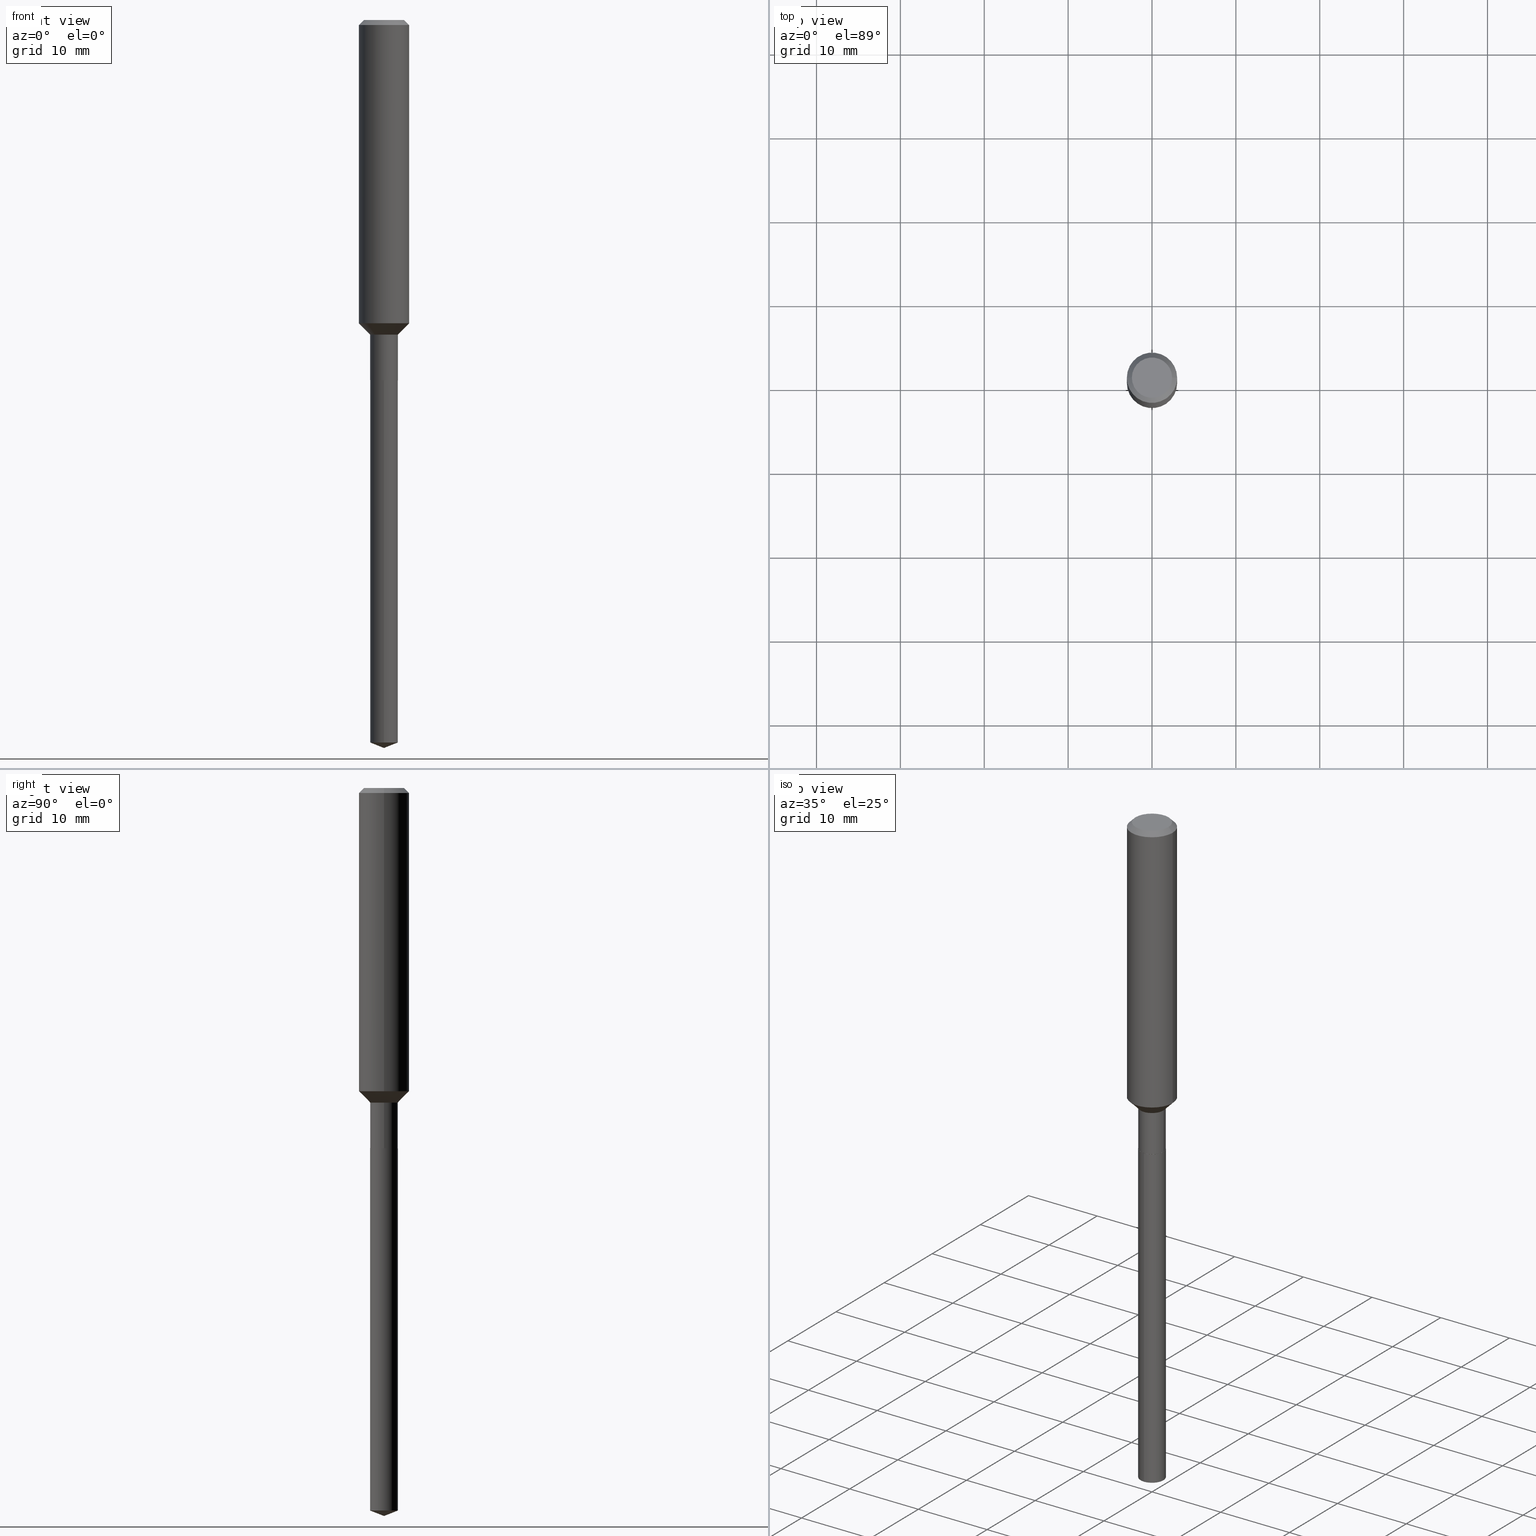
[diagram: canonical four-view strip — front | top / right | iso, engineering-drawing reading convention]
A machine part, canonical four-view strip (front | top / right | iso — engineering-drawing reading convention). The complete STEP part file that produces these views, byte-faithful:
ISO-10303-21;
HEADER;
FILE_DESCRIPTION (( 'STEP AP203' ),
    '1' );
FILE_NAME ('66712.STEP',
    '2024-04-25T04:16:49',
    ( '' ),
    ( '' ),
    'SwSTEP 2.0',
    'SolidWorks 2023',
    '' );
FILE_SCHEMA (( 'CONFIG_CONTROL_DESIGN' ));
ENDSEC;

DATA;
#1 = ORIENTED_EDGE ( 'NONE', *, *, #219, .T. ) ;
#2 = PERSON_AND_ORGANIZATION_ROLE ( 'creator' ) ;
#3 = CARTESIAN_POINT ( 'NONE',  ( 0.1181000000000000799, -8.246878922347486570E-16, 5.758764772215004644E-30 ) ) ;
#4 = AXIS2_PLACEMENT_3D ( 'NONE', #416, #75, #226 ) ;
#5 = AXIS2_PLACEMENT_3D ( 'NONE', #22, #175, #176 ) ;
#6 = PLANE ( 'NONE',  #37 ) ;
#7 = APPLICATION_PROTOCOL_DEFINITION ( 'international standard', 'config_control_design', 1994, #458 ) ;
#8 = LINE ( 'NONE', #348, #124 ) ;
#9 = EDGE_CURVE ( 'NONE', #395, #484, #463, .T. ) ;
#10 = APPROVAL_DATE_TIME ( #350, #193 ) ;
#11 = DIRECTION ( 'NONE',  ( -1.000000000000000000, 6.982962677686265922E-15, -4.876176775795935793E-29 ) ) ;
#12 = SHAPE_DEFINITION_REPRESENTATION ( #397, #38 ) ;
#13 = AXIS2_PLACEMENT_3D ( 'NONE', #323, #177, #292 ) ;
#14 = DIRECTION ( 'NONE',  ( -2.445468806185136597E-29, 3.491481338843145583E-15, 1.000000000000000000 ) ) ;
#15 = DIRECTION ( 'NONE',  ( 0.7071067811866199593, -2.468850131083015945E-15, 0.7071067811864750752 ) ) ;
#16 = ORIENTED_EDGE ( 'NONE', *, *, #368, .F. ) ;
#17 = DIRECTION ( 'NONE',  ( -2.445468806185136597E-29, 3.491481338843145583E-15, 1.000000000000000000 ) ) ;
#18 = ORIENTED_EDGE ( 'NONE', *, *, #255, .T. ) ;
#19 = DATE_AND_TIME ( #90, #276 ) ;
#20 = APPROVAL_PERSON_ORGANIZATION ( #354, #315, #280 ) ;
#21 = CARTESIAN_POINT ( 'NONE',  ( 4.134309563736591358E-29, -5.902698351448221370E-15, -1.690599999999999659 ) ) ;
#22 = CARTESIAN_POINT ( 'NONE',  ( 3.610734692332353876E-29, -5.155172196801902776E-15, -1.476499999999999702 ) ) ;
#23 = ORIENTED_EDGE ( 'NONE', *, *, #212, .F. ) ;
#24 = ADVANCED_FACE ( 'NONE', ( #183 ), #430, .T. ) ;
#25 = DIRECTION ( 'NONE',  ( -2.440828478145644686E-29, 3.498126552706767678E-15, 1.000000000000000000 ) ) ;
#26 = CC_DESIGN_PERSON_AND_ORGANIZATION_ASSIGNMENT ( #389, #473, ( #409 ) ) ;
#27 =( CONVERSION_BASED_UNIT ( 'INCH', #105 ) LENGTH_UNIT ( ) NAMED_UNIT ( #209 ) );
#28 = ORIENTED_EDGE ( 'NONE', *, *, #59, .F. ) ;
#29 = EDGE_CURVE ( 'NONE', #446, #317, #469, .T. ) ;
#30 =( NAMED_UNIT ( * ) PLANE_ANGLE_UNIT ( ) SI_UNIT ( $, .RADIAN. ) );
#31 = EDGE_LOOP ( 'NONE', ( #414, #411, #154, #94 ) ) ;
#32 = DIRECTION ( 'NONE',  ( -2.445468806185136597E-29, 3.491481338843145583E-15, 1.000000000000000000 ) ) ;
#33 = VERTEX_POINT ( 'NONE', #68 ) ;
#34 = VECTOR ( 'NONE', #392, 39.37007874015748143 ) ;
#35 = VERTEX_POINT ( 'NONE', #342 ) ;
#36 = EDGE_CURVE ( 'NONE', #334, #56, #179, .T. ) ;
#37 = AXIS2_PLACEMENT_3D ( 'NONE', #231, #77, #11 ) ;
#38 = ADVANCED_BREP_SHAPE_REPRESENTATION ( '66712', ( #118, #112, #67 ), #123 ) ;
#39 = DIRECTION ( 'NONE',  ( 0.000000000000000000, 0.000000000000000000, 1.000000000000000000 ) ) ;
#40 = ORIENTED_EDGE ( 'NONE', *, *, #51, .T. ) ;
#41 = PERSON_AND_ORGANIZATION ( #447, #479 ) ;
#42 = DIRECTION ( 'NONE',  ( 1.000000000000000000, -6.982962677686266711E-15, 4.876176775795935232E-29 ) ) ;
#43 = CALENDAR_DATE ( 2024, 25, 4 ) ;
#44 = DIRECTION ( 'NONE',  ( -2.445468806185136597E-29, 3.491481338843145583E-15, 1.000000000000000000 ) ) ;
#45 = VECTOR ( 'NONE', #271, 39.37007874015748143 ) ;
#46 = LINE ( 'NONE', #465, #359 ) ;
#47 = COORDINATED_UNIVERSAL_TIME_OFFSET ( 5, 0, .BEHIND. ) ;
#48 = DIRECTION ( 'NONE',  ( 0.7071067811865459074, -7.319954787623251312E-15, -0.7071067811865492381 ) ) ;
#49 = DATE_AND_TIME ( #476, #343 ) ;
#50 = CARTESIAN_POINT ( 'NONE',  ( -0.1180999999999999966, -1.686883405500253272E-15, -0.02362000000000014435 ) ) ;
#51 = EDGE_CURVE ( 'NONE', #73, #320, #351, .T. ) ;
#52 = DIRECTION ( 'NONE',  ( -2.445468806185136597E-29, 3.491481338843145583E-15, 1.000000000000000000 ) ) ;
#53 = PERSON_AND_ORGANIZATION ( #447, #479 ) ;
#54 = DIRECTION ( 'NONE',  ( -6.982962677686266711E-15, -1.000000000000000000, 4.206078512185163024E-15 ) ) ;
#55 = CYLINDRICAL_SURFACE ( 'NONE', #452, 0.06494999999999999385 ) ;
#56 = VERTEX_POINT ( 'NONE', #269 ) ;
#57 = AXIS2_PLACEMENT_3D ( 'NONE', #222, #109, #410 ) ;
#58 = CARTESIAN_POINT ( 'NONE',  ( 4.134309563736591358E-29, -5.902698351448221370E-15, -1.690599999999999659 ) ) ;
#59 = EDGE_CURVE ( 'NONE', #99, #178, #279, .T. ) ;
#60 = ORIENTED_EDGE ( 'NONE', *, *, #204, .T. ) ;
#61 = DIRECTION ( 'NONE',  ( -6.982962677686265133E-15, -1.000000000000000000, 0.000000000000000000 ) ) ;
#62 = ORIENTED_EDGE ( 'NONE', *, *, #184, .T. ) ;
#63 = DIRECTION ( 'NONE',  ( 1.000000000000000000, -6.982962677686271444E-15, 0.000000000000000000 ) ) ;
#64 = DIRECTION ( 'NONE',  ( 1.000000000000000000, -6.982962677686268288E-15, 0.000000000000000000 ) ) ;
#65 = EDGE_CURVE ( 'NONE', #317, #320, #229, .T. ) ;
#66 = CARTESIAN_POINT ( 'NONE',  ( 4.133086829333499117E-29, -5.900952610778799866E-15, -1.690099999999999714 ) ) ;
#67 = AXIS2_PLACEMENT_3D ( 'NONE', #159, #39, #194 ) ;
#68 = CARTESIAN_POINT ( 'NONE',  ( -4.535434259156402642E-16, -0.06495000000001187324, -3.391415514608810078 ) ) ;
#69 = CIRCLE ( 'NONE', #377, 0.06444999999999999341 ) ;
#70 = DIRECTION ( 'NONE',  ( -6.982962677686266711E-15, -1.000000000000000000, 4.206078512185163024E-15 ) ) ;
#71 = ORIENTED_EDGE ( 'NONE', *, *, #117, .T. ) ;
#72 = DIRECTION ( 'NONE',  ( -2.440828478145644686E-29, 3.498126552706767678E-15, 1.000000000000000000 ) ) ;
#73 = VERTEX_POINT ( 'NONE', #311 ) ;
#74 = DIRECTION ( 'NONE',  ( -2.445468806185136597E-29, 3.491481338843145583E-15, 1.000000000000000000 ) ) ;
#75 = DIRECTION ( 'NONE',  ( 2.445468806185136597E-29, -3.491481338843145583E-15, -1.000000000000000000 ) ) ;
#76 = EDGE_CURVE ( 'NONE', #33, #153, #8, .T. ) ;
#77 = DIRECTION ( 'NONE',  ( 2.438088387897960049E-29, -3.491481338843145188E-15, -1.000000000000000000 ) ) ;
#78 = PERSON_AND_ORGANIZATION_ROLE ( 'design_owner' ) ;
#79 = CARTESIAN_POINT ( 'NONE',  ( -0.06494999999999997997, 4.614975068761849284E-16, -3.194848341120560204E-30 ) ) ;
#80 = CC_DESIGN_PERSON_AND_ORGANIZATION_ASSIGNMENT ( #155, #78, ( #322 ) ) ;
#81 = DIRECTION ( 'NONE',  ( 1.000000000000000000, -6.982962677686259611E-15, 0.000000000000000000 ) ) ;
#82 = CIRCLE ( 'NONE', #216, 0.1180999999999999966 ) ;
#83 = DIRECTION ( 'NONE',  ( -2.445468806185136597E-29, 3.491481338843145583E-15, 1.000000000000000000 ) ) ;
#84 = CARTESIAN_POINT ( 'NONE',  ( -0.1180999999999999966, 7.422191030112725094E-16, -0.02362000000000014435 ) ) ;
#85 = FACE_OUTER_BOUND ( 'NONE', #31, .T. ) ;
#86 = CC_DESIGN_DATE_AND_TIME_ASSIGNMENT ( #19, #437, ( #409 ) ) ;
#87 = CLOSED_SHELL ( 'NONE', ( #273, #396, #412, #307, #237 ) ) ;
#88 = CYLINDRICAL_SURFACE ( 'NONE', #471, 0.06494999999999999385 ) ;
#89 = VERTEX_POINT ( 'NONE', #195 ) ;
#90 = CALENDAR_DATE ( 2024, 25, 4 ) ;
#91 = DIRECTION ( 'NONE',  ( 1.000000000000000000, -6.982962677686266711E-15, 0.000000000000000000 ) ) ;
#92 = EDGE_CURVE ( 'NONE', #484, #89, #305, .T. ) ;
#93 = DIRECTION ( 'NONE',  ( -1.000000000000000000, 6.982962677686266711E-15, 0.000000000000000000 ) ) ;
#94 = ORIENTED_EDGE ( 'NONE', *, *, #156, .F. ) ;
#95 = AXIS2_PLACEMENT_3D ( 'NONE', #211, #358, #93 ) ;
#96 = PERSON_AND_ORGANIZATION_ROLE ( 'creator' ) ;
#97 = LINE ( 'NONE', #284, #312 ) ;
#98 = CONICAL_SURFACE ( 'NONE', #95, 0.1180999999999999966, 0.7853981633974459475 ) ;
#99 = VERTEX_POINT ( 'NONE', #272 ) ;
#100 = LINE ( 'NONE', #299, #304 ) ;
#101 = EDGE_LOOP ( 'NONE', ( #260, #60, #285, #289 ) ) ;
#102 = ADVANCED_FACE ( 'NONE', ( #421 ), #198, .T. ) ;
#103 = FACE_OUTER_BOUND ( 'NONE', #107, .T. ) ;
#104 = VERTEX_POINT ( 'NONE', #116 ) ;
#105 = LENGTH_MEASURE_WITH_UNIT ( LENGTH_MEASURE( 0.02539999999999999897 ), #371 );
#106 = AXIS2_PLACEMENT_3D ( 'NONE', #192, #14, #390 ) ;
#107 = EDGE_LOOP ( 'NONE', ( #335, #203, #110, #173 ) ) ;
#108 = AXIS2_PLACEMENT_3D ( 'NONE', #254, #241, #247 ) ;
#109 = DIRECTION ( 'NONE',  ( -2.445468806185136597E-29, 3.491481338843145583E-15, 1.000000000000000000 ) ) ;
#110 = ORIENTED_EDGE ( 'NONE', *, *, #243, .F. ) ;
#111 = CARTESIAN_POINT ( 'NONE',  ( 4.716267017698007905E-46, -6.733579360998555036E-32, -1.928573779297252010E-17 ) ) ;
#112 = MANIFOLD_SOLID_BREP ( 'Body-Move/Copy2[2]', #378 ) ;
#113 = ORIENTED_EDGE ( 'NONE', *, *, #490, .T. ) ;
#114 = APPROVAL_STATUS ( 'not_yet_approved' ) ;
#115 = LINE ( 'NONE', #277, #125 ) ;
#116 = CARTESIAN_POINT ( 'NONE',  ( 4.614975068762680546E-16, 0.06494999999998818385, -3.391415514608810078 ) ) ;
#117 = EDGE_CURVE ( 'NONE', #395, #372, #197, .T. ) ;
#118 = MANIFOLD_SOLID_BREP ( 'Body-Move/Copy2[1]', #87 ) ;
#119 = CARTESIAN_POINT ( 'NONE',  ( 4.134309563736591358E-29, -5.902698351448221370E-15, -1.690599999999999659 ) ) ;
#120 = CC_DESIGN_PERSON_AND_ORGANIZATION_ASSIGNMENT ( #456, #2, ( #137 ) ) ;
#121 = DIRECTION ( 'NONE',  ( 6.611014441532090255E-15, 0.9304175679820302358, 0.3665012267242826471 ) ) ;
#122 = CIRCLE ( 'NONE', #151, 0.06494999999999999385 ) ;
#123 =( GEOMETRIC_REPRESENTATION_CONTEXT ( 3 ) GLOBAL_UNCERTAINTY_ASSIGNED_CONTEXT ( ( #248 ) ) GLOBAL_UNIT_ASSIGNED_CONTEXT ( ( #27, #30, #485 ) ) REPRESENTATION_CONTEXT ( 'NONE', 'WORKASPACE' ) );
#124 = VECTOR ( 'NONE', #309, 39.37007874015748143 ) ;
#125 = VECTOR ( 'NONE', #128, 39.37007874015748143 ) ;
#126 = ADVANCED_FACE ( 'NONE', ( #347 ), #6, .F. ) ;
#127 = CALENDAR_DATE ( 2024, 25, 4 ) ;
#128 = DIRECTION ( 'NONE',  ( -2.440828478145644686E-29, 3.498126552706767678E-15, 1.000000000000000000 ) ) ;
#129 = SECURITY_CLASSIFICATION_LEVEL ( 'unclassified' ) ;
#130 = PLANE ( 'NONE',  #402 ) ;
#131 = PERSON_AND_ORGANIZATION ( #447, #479 ) ;
#132 = FACE_OUTER_BOUND ( 'NONE', #393, .T. ) ;
#133 = EDGE_LOOP ( 'NONE', ( #324, #374, #215, #145 ) ) ;
#134 = CONICAL_SURFACE ( 'NONE', #287, 0.06494999999999996609, 0.7853981633974506105 ) ;
#135 = CARTESIAN_POINT ( 'NONE',  ( -0.06444999999999999341, -5.442104331076725547E-15, -1.690599999999999659 ) ) ;
#136 = EDGE_LOOP ( 'NONE', ( #258, #363, #250 ) ) ;
#137 = PRODUCT_DEFINITION ( 'UNKNOWN', '', #488, #362 ) ;
#138 = APPROVAL_DATE_TIME ( #49, #315 ) ;
#139 = CYLINDRICAL_SURFACE ( 'NONE', #432, 0.1181000000000000799 ) ;
#140 = ORIENTED_EDGE ( 'NONE', *, *, #255, .F. ) ;
#141 = CARTESIAN_POINT ( 'NONE',  ( 5.776197320209328408E-31, -8.246878922347560526E-17, -0.02362000000000014435 ) ) ;
#142 = LINE ( 'NONE', #265, #310 ) ;
#143 = DIRECTION ( 'NONE',  ( -2.445468806185136597E-29, 3.491481338843145583E-15, 1.000000000000000000 ) ) ;
#144 = CC_DESIGN_PERSON_AND_ORGANIZATION_ASSIGNMENT ( #53, #429, ( #488 ) ) ;
#145 = ORIENTED_EDGE ( 'NONE', *, *, #330, .F. ) ;
#146 = FACE_OUTER_BOUND ( 'NONE', #133, .T. ) ;
#147 = ORIENTED_EDGE ( 'NONE', *, *, #76, .F. ) ;
#148 = AXIS2_PLACEMENT_3D ( 'NONE', #249, #431, #435 ) ;
#149 = AXIS2_PLACEMENT_3D ( 'NONE', #375, #72, #70 ) ;
#150 = ORIENTED_EDGE ( 'NONE', *, *, #219, .F. ) ;
#151 = AXIS2_PLACEMENT_3D ( 'NONE', #225, #415, #217 ) ;
#152 = ADVANCED_FACE ( 'NONE', ( #387 ), #227, .T. ) ;
#153 = VERTEX_POINT ( 'NONE', #167 ) ;
#154 = ORIENTED_EDGE ( 'NONE', *, *, #325, .T. ) ;
#155 = PERSON_AND_ORGANIZATION ( #447, #479 ) ;
#156 = EDGE_CURVE ( 'NONE', #446, #178, #238, .T. ) ;
#157 = CARTESIAN_POINT ( 'NONE',  ( 0.1180999999999999966, -8.926936027602933910E-16, -0.02362000000000014435 ) ) ;
#158 = CIRCLE ( 'NONE', #108, 0.06495000000000000773 ) ;
#159 = CARTESIAN_POINT ( 'NONE',  ( 0.000000000000000000, 0.000000000000000000, 0.000000000000000000 ) ) ;
#160 = CARTESIAN_POINT ( 'NONE',  ( 3.610734692332353876E-29, -5.155172196801902776E-15, -1.476499999999999702 ) ) ;
#161 = APPROVAL_STATUS ( 'not_yet_approved' ) ;
#162 = CARTESIAN_POINT ( 'NONE',  ( -0.1181000000000000799, 8.391509709326788873E-16, -5.809262341591047988E-30 ) ) ;
#163 = CARTESIAN_POINT ( 'NONE',  ( 4.134309563736591358E-29, -5.902698351448221370E-15, -1.690599999999999659 ) ) ;
#164 = VECTOR ( 'NONE', #420, 39.37007874015748143 ) ;
#165 = ADVANCED_FACE ( 'NONE', ( #461 ), #134, .T. ) ;
#166 = CONICAL_SURFACE ( 'NONE', #148, 0.06444999999999999341, 0.7853981633975507526 ) ;
#167 = CARTESIAN_POINT ( 'NONE',  ( -4.535434259156815808E-16, -0.06495000000000589191, -1.690599999999999437 ) ) ;
#168 = DIRECTION ( 'NONE',  ( -2.440828478145644686E-29, 3.498126552706767678E-15, 1.000000000000000000 ) ) ;
#169 = ORIENTED_EDGE ( 'NONE', *, *, #29, .T. ) ;
#170 = COORDINATED_UNIVERSAL_TIME_OFFSET ( 5, 0, .BEHIND. ) ;
#171 = DIRECTION ( 'NONE',  ( -6.497071151882141924E-15, -0.9304175679820277933, 0.3665012267242891975 ) ) ;
#172 = EDGE_CURVE ( 'NONE', #455, #104, #46, .T. ) ;
#173 = ORIENTED_EDGE ( 'NONE', *, *, #440, .F. ) ;
#174 = AXIS2_PLACEMENT_3D ( 'NONE', #441, #466, #202 ) ;
#175 = DIRECTION ( 'NONE',  ( -2.445468806185136597E-29, 3.491481338843145583E-15, 1.000000000000000000 ) ) ;
#176 = DIRECTION ( 'NONE',  ( 1.000000000000000000, -6.982962677686271444E-15, 0.000000000000000000 ) ) ;
#177 = DIRECTION ( 'NONE',  ( -2.438088387897960049E-29, 3.491481338843145188E-15, 1.000000000000000000 ) ) ;
#178 = VERTEX_POINT ( 'NONE', #50 ) ;
#179 = CIRCLE ( 'NONE', #106, 0.06444999999999999341 ) ;
#180 = DIRECTION ( 'NONE',  ( 1.000000000000000000, -6.982962677686267499E-15, 4.875432709231658792E-29 ) ) ;
#181 = DIRECTION ( 'NONE',  ( -2.445468806185136597E-29, 3.491481338843145583E-15, 1.000000000000000000 ) ) ;
#182 = ORIENTED_EDGE ( 'NONE', *, *, #9, .F. ) ;
#183 = FACE_OUTER_BOUND ( 'NONE', #218, .T. ) ;
#184 = EDGE_CURVE ( 'NONE', #56, #334, #69, .T. ) ;
#185 = CONICAL_SURFACE ( 'NONE', #278, 99.94676754584246225, 1.195550537616127951 ) ;
#186 = CARTESIAN_POINT ( 'NONE',  ( -8.774745352740555404E-28, 1.257796537910599221E-13, 35.95307874015747984 ) ) ;
#187 = AXIS2_PLACEMENT_3D ( 'NONE', #66, #32, #214 ) ;
#188 = ORIENTED_EDGE ( 'NONE', *, *, #339, .T. ) ;
#189 = CALENDAR_DATE ( 2024, 25, 4 ) ;
#190 = EDGE_LOOP ( 'NONE', ( #406, #453 ) ) ;
#191 = EDGE_CURVE ( 'NONE', #104, #35, #115, .T. ) ;
#192 = CARTESIAN_POINT ( 'NONE',  ( 4.134309563736591358E-29, -5.902698351448221370E-15, -1.690599999999999659 ) ) ;
#193 = APPROVAL ( #114, 'UNSPECIFIED' ) ;
#194 = DIRECTION ( 'NONE',  ( 1.000000000000000000, 0.000000000000000000, 0.000000000000000000 ) ) ;
#195 = CARTESIAN_POINT ( 'NONE',  ( 0.06494999999999996609, -5.608715622717625969E-15, -1.476499999999999702 ) ) ;
#196 = AXIS2_PLACEMENT_3D ( 'NONE', #141, #52, #91 ) ;
#197 = LINE ( 'NONE', #79, #45 ) ;
#198 = CYLINDRICAL_SURFACE ( 'NONE', #298, 0.1181000000000000799 ) ;
#199 = ADVANCED_FACE ( 'NONE', ( #419 ), #424, .T. ) ;
#200 = CARTESIAN_POINT ( 'NONE',  ( 0.000000000000000000, 0.000000000000000000, 0.000000000000000000 ) ) ;
#201 = CC_DESIGN_SECURITY_CLASSIFICATION ( #409, ( #488 ) ) ;
#202 = DIRECTION ( 'NONE',  ( 1.000000000000000000, -6.982962677686263555E-15, 0.000000000000000000 ) ) ;
#203 = ORIENTED_EDGE ( 'NONE', *, *, #346, .T. ) ;
#204 = EDGE_CURVE ( 'NONE', #104, #33, #158, .T. ) ;
#205 = DIRECTION ( 'NONE',  ( -2.445468806185136597E-29, 3.491481338843145583E-15, 1.000000000000000000 ) ) ;
#206 = LINE ( 'NONE', #314, #34 ) ;
#207 = CIRCLE ( 'NONE', #364, 0.06495000000000000773 ) ;
#208 = AXIS2_PLACEMENT_3D ( 'NONE', #407, #143, #373 ) ;
#209 = DIMENSIONAL_EXPONENTS ( 1.000000000000000000, 0.000000000000000000, 0.000000000000000000, 0.000000000000000000, 0.000000000000000000, 0.000000000000000000, 0.000000000000000000 ) ;
#210 = CIRCLE ( 'NONE', #196, 0.1180999999999999966 ) ;
#211 = CARTESIAN_POINT ( 'NONE',  ( 5.776197320209328408E-31, -8.246878922347560526E-17, -0.02362000000000014435 ) ) ;
#212 = EDGE_CURVE ( 'NONE', #455, #33, #467, .T. ) ;
#213 = CARTESIAN_POINT ( 'NONE',  ( 0.1180999999999999966, -9.071566814582237199E-16, -0.02362000000000014435 ) ) ;
#214 = DIRECTION ( 'NONE',  ( 1.000000000000000000, -6.982962677686268288E-15, 0.000000000000000000 ) ) ;
#215 = ORIENTED_EDGE ( 'NONE', *, *, #92, .T. ) ;
#216 = AXIS2_PLACEMENT_3D ( 'NONE', #477, #17, #470 ) ;
#217 = DIRECTION ( 'NONE',  ( -6.982962677686266711E-15, -1.000000000000000000, 4.206078512185163024E-15 ) ) ;
#218 = EDGE_LOOP ( 'NONE', ( #436, #439, #482, #1 ) ) ;
#219 = EDGE_CURVE ( 'NONE', #178, #320, #210, .T. ) ;
#220 = FACE_OUTER_BOUND ( 'NONE', #136, .T. ) ;
#221 = ORIENTED_EDGE ( 'NONE', *, *, #51, .F. ) ;
#222 = CARTESIAN_POINT ( 'NONE',  ( 3.610734692332353876E-29, -5.155172196801902776E-15, -1.476499999999999702 ) ) ;
#223 = ORIENTED_EDGE ( 'NONE', *, *, #339, .F. ) ;
#224 = LOCAL_TIME ( 0, 16, 49.00000000000000000, #230 ) ;
#225 = CARTESIAN_POINT ( 'NONE',  ( 4.134309563736591358E-29, -5.902698351448221370E-15, -1.690599999999999659 ) ) ;
#226 = DIRECTION ( 'NONE',  ( -1.000000000000000000, 6.982962677686266711E-15, 0.000000000000000000 ) ) ;
#227 = CONICAL_SURFACE ( 'NONE', #337, 0.06444999999999999341, 0.7853981633975507526 ) ;
#228 = APPROVAL_ROLE ( '' ) ;
#229 = LINE ( 'NONE', #157, #321 ) ;
#230 = COORDINATED_UNIVERSAL_TIME_OFFSET ( 5, 0, .BEHIND. ) ;
#231 = CARTESIAN_POINT ( 'NONE',  ( 2.358133508849003952E-46, -3.366789680499277518E-32, -9.642868896486260050E-18 ) ) ;
#232 = CC_DESIGN_APPROVAL ( #193, ( #488 ) ) ;
#233 = DIRECTION ( 'NONE',  ( -2.445468806185136877E-29, 3.491481338843145188E-15, 1.000000000000000000 ) ) ;
#234 = VECTOR ( 'NONE', #233, 39.37007874015748143 ) ;
#235 = VECTOR ( 'NONE', #384, 39.37007874015748143 ) ;
#236 = DATE_TIME_ROLE ( 'creation_date' ) ;
#237 = ADVANCED_FACE ( 'NONE', ( #132 ), #130, .F. ) ;
#238 = LINE ( 'NONE', #84, #235 ) ;
#239 = DIRECTION ( 'NONE',  ( -2.445468806185136597E-29, 3.491481338843145583E-15, 1.000000000000000000 ) ) ;
#240 = CC_DESIGN_PERSON_AND_ORGANIZATION_ASSIGNMENT ( #131, #96, ( #488 ) ) ;
#241 = DIRECTION ( 'NONE',  ( -2.440828478145644686E-29, 3.498126552706767678E-15, 1.000000000000000000 ) ) ;
#242 = ORIENTED_EDGE ( 'NONE', *, *, #59, .T. ) ;
#243 = EDGE_CURVE ( 'NONE', #73, #99, #253, .T. ) ;
#244 = APPROVAL_STATUS ( 'not_yet_approved' ) ;
#245 = DIRECTION ( 'NONE',  ( 6.982962677686265922E-15, 1.000000000000000000, -3.498126552706767678E-15 ) ) ;
#246 = ORIENTED_EDGE ( 'NONE', *, *, #36, .T. ) ;
#247 = DIRECTION ( 'NONE',  ( -6.982962677686265133E-15, -1.000000000000000000, 0.000000000000000000 ) ) ;
#248 = UNCERTAINTY_MEASURE_WITH_UNIT (LENGTH_MEASURE( 1.000000000000000082E-05 ), #27, 'distance_accuracy_value', 'NONE');
#249 = CARTESIAN_POINT ( 'NONE',  ( 4.134309563736591358E-29, -5.902698351448221370E-15, -1.690599999999999659 ) ) ;
#250 = ORIENTED_EDGE ( 'NONE', *, *, #204, .F. ) ;
#251 = AXIS2_PLACEMENT_3D ( 'NONE', #427, #355, #326 ) ;
#252 = AXIS2_PLACEMENT_3D ( 'NONE', #268, #487, #64 ) ;
#253 = CIRCLE ( 'NONE', #174, 0.1181000000000001632 ) ;
#254 = CARTESIAN_POINT ( 'NONE',  ( 8.285708507865714879E-29, -1.185236626435692733E-14, -3.391415514608810078 ) ) ;
#255 = EDGE_CURVE ( 'NONE', #99, #73, #386, .T. ) ;
#256 = ORIENTED_EDGE ( 'NONE', *, *, #490, .F. ) ;
#257 = CARTESIAN_POINT ( 'NONE',  ( 3.610734692332353876E-29, -5.155172196801902776E-15, -1.476499999999999702 ) ) ;
#258 = ORIENTED_EDGE ( 'NONE', *, *, #172, .F. ) ;
#259 = CARTESIAN_POINT ( 'NONE',  ( 8.340310909823668576E-29, -1.195309843059902429E-14, -3.416999999999999815 ) ) ;
#260 = ORIENTED_EDGE ( 'NONE', *, *, #191, .F. ) ;
#261 = EDGE_CURVE ( 'NONE', #56, #484, #97, .T. ) ;
#262 = CC_DESIGN_APPROVAL ( #349, ( #137 ) ) ;
#263 = CIRCLE ( 'NONE', #486, 0.09447999999999998066 ) ;
#264 = ORIENTED_EDGE ( 'NONE', *, *, #261, .T. ) ;
#265 = CARTESIAN_POINT ( 'NONE',  ( -0.06444999999999999341, -5.444753558250836748E-15, -1.690599999999999659 ) ) ;
#266 = ORIENTED_EDGE ( 'NONE', *, *, #425, .T. ) ;
#267 = ADVANCED_FACE ( 'NONE', ( #85 ), #98, .T. ) ;
#268 = CARTESIAN_POINT ( 'NONE',  ( 4.133086829333499117E-29, -5.900952610778799866E-15, -1.690099999999999714 ) ) ;
#269 = CARTESIAN_POINT ( 'NONE',  ( 0.06444999999999999341, -6.352750296025100767E-15, -1.690599999999999659 ) ) ;
#270 = PRODUCT_RELATED_PRODUCT_CATEGORY ( 'detail', '', ( #322 ) ) ;
#271 = DIRECTION ( 'NONE',  ( -2.445468806185136877E-29, 3.491481338843145188E-15, 1.000000000000000000 ) ) ;
#272 = CARTESIAN_POINT ( 'NONE',  ( -0.1181000000000001632, -4.130448992709710466E-15, -1.423349999999999671 ) ) ;
#273 = ADVANCED_FACE ( 'NONE', ( #403 ), #55, .T. ) ;
#274 = COORDINATED_UNIVERSAL_TIME_OFFSET ( 5, 0, .BEHIND. ) ;
#275 = CIRCLE ( 'NONE', #57, 0.06494999999999996609 ) ;
#276 = LOCAL_TIME ( 0, 16, 49.00000000000000000, #170 ) ;
#277 = CARTESIAN_POINT ( 'NONE',  ( 4.614975068762263436E-16, 0.06494999999999409579, -1.690600000000000103 ) ) ;
#278 = AXIS2_PLACEMENT_3D ( 'NONE', #186, #333, #483 ) ;
#279 = LINE ( 'NONE', #162, #234 ) ;
#280 = APPROVAL_ROLE ( '' ) ;
#281 = FACE_OUTER_BOUND ( 'NONE', #190, .T. ) ;
#282 = ADVANCED_FACE ( 'NONE', ( #366 ), #166, .T. ) ;
#283 = COORDINATED_UNIVERSAL_TIME_OFFSET ( 5, 0, .BEHIND. ) ;
#284 = CARTESIAN_POINT ( 'NONE',  ( 0.06444999999999999341, -6.352750296025100767E-15, -1.690599999999999659 ) ) ;
#285 = ORIENTED_EDGE ( 'NONE', *, *, #76, .T. ) ;
#286 = VECTOR ( 'NONE', #306, 39.37007874015748143 ) ;
#287 = AXIS2_PLACEMENT_3D ( 'NONE', #160, #457, #353 ) ;
#288 = FACE_OUTER_BOUND ( 'NONE', #404, .T. ) ;
#289 = ORIENTED_EDGE ( 'NONE', *, *, #383, .F. ) ;
#290 = CARTESIAN_POINT ( 'NONE',  ( 8.340310909823668576E-29, -1.195309843059902429E-14, -3.416999999999999815 ) ) ;
#291 = DIRECTION ( 'NONE',  ( 2.440828478145644686E-29, -3.498126552706767678E-15, -1.000000000000000000 ) ) ;
#292 = DIRECTION ( 'NONE',  ( 1.000000000000000000, -6.982962677686265922E-15, 4.876176775795935793E-29 ) ) ;
#293 = DIRECTION ( 'NONE',  ( 0.7071067811865491270, -2.468850131082274021E-15, 0.7071067811865459074 ) ) ;
#294 = ORIENTED_EDGE ( 'NONE', *, *, #172, .T. ) ;
#295 = CYLINDRICAL_SURFACE ( 'NONE', #208, 0.06494999999999997997 ) ;
#296 = ORIENTED_EDGE ( 'NONE', *, *, #191, .T. ) ;
#297 = CONICAL_SURFACE ( 'NONE', #329, 99.94676754584246225, 1.195550537616127951 ) ;
#298 = AXIS2_PLACEMENT_3D ( 'NONE', #426, #44, #459 ) ;
#299 = CARTESIAN_POINT ( 'NONE',  ( 0.06494999999999996609, -5.608715622717625969E-15, -1.476499999999999702 ) ) ;
#300 = ORIENTED_EDGE ( 'NONE', *, *, #92, .F. ) ;
#301 = EDGE_LOOP ( 'NONE', ( #28, #18, #40, #150 ) ) ;
#302 = DATE_AND_TIME ( #189, #391 ) ;
#303 = ORIENTED_EDGE ( 'NONE', *, *, #468, .T. ) ;
#304 = VECTOR ( 'NONE', #293, 39.37007874015748143 ) ;
#305 = LINE ( 'NONE', #388, #164 ) ;
#306 = DIRECTION ( 'NONE',  ( -2.445468806185136877E-29, 3.491481338843145188E-15, 1.000000000000000000 ) ) ;
#307 = ADVANCED_FACE ( 'NONE', ( #316 ), #88, .T. ) ;
#308 = APPROVAL_ROLE ( '' ) ;
#309 = DIRECTION ( 'NONE',  ( -2.440828478145644686E-29, 3.498126552706767678E-15, 1.000000000000000000 ) ) ;
#310 = VECTOR ( 'NONE', #444, 39.37007874015748143 ) ;
#311 = CARTESIAN_POINT ( 'NONE',  ( 0.1181000000000001632, -5.794287855877138504E-15, -1.423349999999999671 ) ) ;
#312 = VECTOR ( 'NONE', #15, 39.37007874015748143 ) ;
#313 = ADVANCED_FACE ( 'NONE', ( #288 ), #139, .T. ) ;
#314 = CARTESIAN_POINT ( 'NONE',  ( -0.06494999999999996609, -4.693674689925718045E-15, -1.476499999999999702 ) ) ;
#315 = APPROVAL ( #244, 'UNSPECIFIED' ) ;
#316 = FACE_OUTER_BOUND ( 'NONE', #101, .T. ) ;
#317 = VERTEX_POINT ( 'NONE', #356 ) ;
#318 = CARTESIAN_POINT ( 'NONE',  ( 4.134309563736591358E-29, -5.902698351448221370E-15, -1.690599999999999659 ) ) ;
#319 = CONICAL_SURFACE ( 'NONE', #361, 0.06494999999999996609, 0.7853981633974506105 ) ;
#320 = VERTEX_POINT ( 'NONE', #213 ) ;
#321 = VECTOR ( 'NONE', #48, 39.37007874015748143 ) ;
#322 = PRODUCT ( '66712', '66712', '', ( #344 ) ) ;
#323 = CARTESIAN_POINT ( 'NONE',  ( 4.134309563736591358E-29, -5.902698351448221370E-15, -1.690599999999999659 ) ) ;
#324 = ORIENTED_EDGE ( 'NONE', *, *, #117, .F. ) ;
#325 = EDGE_CURVE ( 'NONE', #320, #178, #82, .T. ) ;
#326 = DIRECTION ( 'NONE',  ( 1.000000000000000000, -6.982962677686263555E-15, 0.000000000000000000 ) ) ;
#327 = CARTESIAN_POINT ( 'NONE',  ( -8.774745352740555404E-28, 1.257796537910599221E-13, 35.95307874015747984 ) ) ;
#328 = EDGE_LOOP ( 'NONE', ( #23, #294, #223 ) ) ;
#329 = AXIS2_PLACEMENT_3D ( 'NONE', #327, #478, #413 ) ;
#330 = EDGE_CURVE ( 'NONE', #372, #89, #443, .T. ) ;
#331 = DIRECTION ( 'NONE',  ( -2.445468806185136597E-29, 3.491481338843145583E-15, 1.000000000000000000 ) ) ;
#332 = ORIENTED_EDGE ( 'NONE', *, *, #243, .T. ) ;
#333 = DIRECTION ( 'NONE',  ( -2.440828478145644686E-29, 3.498126552706767678E-15, 1.000000000000000000 ) ) ;
#334 = VERTEX_POINT ( 'NONE', #135 ) ;
#335 = ORIENTED_EDGE ( 'NONE', *, *, #368, .T. ) ;
#336 = CC_DESIGN_APPROVAL ( #315, ( #409 ) ) ;
#337 = AXIS2_PLACEMENT_3D ( 'NONE', #163, #239, #460 ) ;
#338 = EDGE_LOOP ( 'NONE', ( #169, #399 ) ) ;
#339 = EDGE_CURVE ( 'NONE', #33, #104, #207, .T. ) ;
#340 = APPROVAL_DATE_TIME ( #302, #349 ) ;
#341 = ORIENTED_EDGE ( 'NONE', *, *, #261, .F. ) ;
#342 = CARTESIAN_POINT ( 'NONE',  ( 4.614975068762683505E-16, 0.06494999999999410967, -1.690600000000000103 ) ) ;
#343 = LOCAL_TIME ( 0, 16, 49.00000000000000000, #283 ) ;
#344 = MECHANICAL_CONTEXT ( 'NONE', #381, 'mechanical' ) ;
#345 = AXIS2_PLACEMENT_3D ( 'NONE', #369, #181, #408 ) ;
#346 = EDGE_CURVE ( 'NONE', #372, #99, #206, .T. ) ;
#347 = FACE_OUTER_BOUND ( 'NONE', #338, .T. ) ;
#348 = CARTESIAN_POINT ( 'NONE',  ( -4.535434259156815808E-16, -0.06495000000000589191, -1.690599999999999437 ) ) ;
#349 = APPROVAL ( #161, 'UNSPECIFIED' ) ;
#350 = DATE_AND_TIME ( #43, #423 ) ;
#351 = LINE ( 'NONE', #3, #286 ) ;
#352 = ADVANCED_FACE ( 'NONE', ( #281 ), #474, .F. ) ;
#353 = DIRECTION ( 'NONE',  ( 1.000000000000000000, -6.982962677686271444E-15, 0.000000000000000000 ) ) ;
#354 = PERSON_AND_ORGANIZATION ( #447, #479 ) ;
#355 = DIRECTION ( 'NONE',  ( -2.445468806185136597E-29, 3.491481338843145583E-15, 1.000000000000000000 ) ) ;
#356 = CARTESIAN_POINT ( 'NONE',  ( 0.09447999999999998066, -7.704367267948738690E-16, -1.928573779296752193E-17 ) ) ;
#357 = ORIENTED_EDGE ( 'NONE', *, *, #440, .T. ) ;
#358 = DIRECTION ( 'NONE',  ( 2.445468806185136597E-29, -3.491481338843145583E-15, -1.000000000000000000 ) ) ;
#359 = VECTOR ( 'NONE', #121, 39.37007874015748143 ) ;
#360 = EDGE_CURVE ( 'NONE', #317, #446, #263, .T. ) ;
#361 = AXIS2_PLACEMENT_3D ( 'NONE', #257, #331, #63 ) ;
#362 = DESIGN_CONTEXT ( 'detailed design', #458, 'design' ) ;
#363 = ORIENTED_EDGE ( 'NONE', *, *, #212, .T. ) ;
#364 = AXIS2_PLACEMENT_3D ( 'NONE', #398, #25, #61 ) ;
#365 = DIRECTION ( 'NONE',  ( 1.000000000000000000, -6.982962677686266711E-15, 4.876176775795936353E-29 ) ) ;
#366 = FACE_OUTER_BOUND ( 'NONE', #367, .T. ) ;
#367 = EDGE_LOOP ( 'NONE', ( #62, #266, #256, #341 ) ) ;
#368 = EDGE_CURVE ( 'NONE', #89, #372, #275, .T. ) ;
#369 = CARTESIAN_POINT ( 'NONE',  ( 4.716267017698007905E-46, -6.733579360998555036E-32, -1.928573779297252010E-17 ) ) ;
#370 = CIRCLE ( 'NONE', #187, 0.06494999999999999385 ) ;
#371 =( LENGTH_UNIT ( ) NAMED_UNIT ( * ) SI_UNIT ( $, .METRE. ) );
#372 = VERTEX_POINT ( 'NONE', #379 ) ;
#373 = DIRECTION ( 'NONE',  ( 1.000000000000000000, -6.982962677686266711E-15, 4.876176775795935232E-29 ) ) ;
#374 = ORIENTED_EDGE ( 'NONE', *, *, #9, .T. ) ;
#375 = CARTESIAN_POINT ( 'NONE',  ( 4.134309563736591358E-29, -5.902698351448221370E-15, -1.690599999999999659 ) ) ;
#376 = EDGE_LOOP ( 'NONE', ( #489, #246, #264, #182 ) ) ;
#377 = AXIS2_PLACEMENT_3D ( 'NONE', #119, #382, #81 ) ;
#378 = CLOSED_SHELL ( 'NONE', ( #282, #267, #313, #451, #199, #434, #165, #102, #24, #126, #352, #152 ) ) ;
#379 = CARTESIAN_POINT ( 'NONE',  ( -0.06494999999999996609, -5.066564896914166984E-15, -1.476499999999999702 ) ) ;
#380 = ORIENTED_EDGE ( 'NONE', *, *, #330, .T. ) ;
#381 = APPLICATION_CONTEXT ( 'configuration controlled 3d designs of mechanical parts and assemblies' ) ;
#382 = DIRECTION ( 'NONE',  ( -2.445468806185136597E-29, 3.491481338843145583E-15, 1.000000000000000000 ) ) ;
#383 = EDGE_CURVE ( 'NONE', #35, #153, #122, .T. ) ;
#384 = DIRECTION ( 'NONE',  ( -0.7071067811865459074, 2.468850131082239706E-15, -0.7071067811865492381 ) ) ;
#385 = CIRCLE ( 'NONE', #149, 0.06494999999999999385 ) ;
#386 = CIRCLE ( 'NONE', #251, 0.1181000000000001632 ) ;
#387 = FACE_OUTER_BOUND ( 'NONE', #376, .T. ) ;
#388 = CARTESIAN_POINT ( 'NONE',  ( 0.06494999999999997997, -4.535434259157228974E-16, 3.167076815879459014E-30 ) ) ;
#389 = PERSON_AND_ORGANIZATION ( #447, #479 ) ;
#390 = DIRECTION ( 'NONE',  ( 1.000000000000000000, -6.982962677686259611E-15, 0.000000000000000000 ) ) ;
#391 = LOCAL_TIME ( 0, 16, 49.00000000000000000, #274 ) ;
#392 = DIRECTION ( 'NONE',  ( -0.7071067811865491270, 7.493145998870360471E-15, 0.7071067811865459074 ) ) ;
#393 = EDGE_LOOP ( 'NONE', ( #303, #442 ) ) ;
#394 = DIRECTION ( 'NONE',  ( -6.982962677686266711E-15, -1.000000000000000000, 4.206078512185163024E-15 ) ) ;
#395 = VERTEX_POINT ( 'NONE', #481 ) ;
#396 = ADVANCED_FACE ( 'NONE', ( #405 ), #185, .T. ) ;
#397 = PRODUCT_DEFINITION_SHAPE ( 'NONE', 'NONE',  #137 ) ;
#398 = CARTESIAN_POINT ( 'NONE',  ( 8.285708507865714879E-29, -1.185236626435692733E-14, -3.391415514608810078 ) ) ;
#399 = ORIENTED_EDGE ( 'NONE', *, *, #360, .T. ) ;
#400 = DIRECTION ( 'NONE',  ( -2.440828478145644686E-29, 3.498126552706767678E-15, 1.000000000000000000 ) ) ;
#401 = EDGE_LOOP ( 'NONE', ( #480, #380, #357, #140 ) ) ;
#402 = AXIS2_PLACEMENT_3D ( 'NONE', #58, #291, #245 ) ;
#403 = FACE_OUTER_BOUND ( 'NONE', #449, .T. ) ;
#404 = EDGE_LOOP ( 'NONE', ( #332, #242, #472, #221 ) ) ;
#405 = FACE_OUTER_BOUND ( 'NONE', #328, .T. ) ;
#406 = ORIENTED_EDGE ( 'NONE', *, *, #184, .F. ) ;
#407 = CARTESIAN_POINT ( 'NONE',  ( 0.000000000000000000, 0.000000000000000000, 0.000000000000000000 ) ) ;
#408 = DIRECTION ( 'NONE',  ( 1.000000000000000000, -6.982962677686267499E-15, 4.875432709231658792E-29 ) ) ;
#409 = SECURITY_CLASSIFICATION ( '', '', #129 ) ;
#410 = DIRECTION ( 'NONE',  ( 1.000000000000000000, -6.982962677686271444E-15, 0.000000000000000000 ) ) ;
#411 = ORIENTED_EDGE ( 'NONE', *, *, #65, .T. ) ;
#412 = ADVANCED_FACE ( 'NONE', ( #220 ), #297, .T. ) ;
#413 = DIRECTION ( 'NONE',  ( -6.982962677686265922E-15, -1.000000000000000000, 3.498627837349917053E-15 ) ) ;
#414 = ORIENTED_EDGE ( 'NONE', *, *, #360, .F. ) ;
#415 = DIRECTION ( 'NONE',  ( -2.440828478145644686E-29, 3.498126552706767678E-15, 1.000000000000000000 ) ) ;
#416 = CARTESIAN_POINT ( 'NONE',  ( 5.776197320209328408E-31, -8.246878922347560526E-17, -0.02362000000000014435 ) ) ;
#417 = APPROVAL_PERSON_ORGANIZATION ( #41, #349, #308 ) ;
#418 = DATE_AND_TIME ( #127, #224 ) ;
#419 = FACE_OUTER_BOUND ( 'NONE', #433, .T. ) ;
#420 = DIRECTION ( 'NONE',  ( -2.445468806185136877E-29, 3.491481338843145188E-15, 1.000000000000000000 ) ) ;
#421 = FACE_OUTER_BOUND ( 'NONE', #301, .T. ) ;
#422 = VECTOR ( 'NONE', #171, 39.37007874015748143 ) ;
#423 = LOCAL_TIME ( 0, 16, 49.00000000000000000, #47 ) ;
#424 = CYLINDRICAL_SURFACE ( 'NONE', #464, 0.06494999999999997997 ) ;
#425 = EDGE_CURVE ( 'NONE', #334, #395, #142, .T. ) ;
#426 = CARTESIAN_POINT ( 'NONE',  ( 0.000000000000000000, 0.000000000000000000, 0.000000000000000000 ) ) ;
#427 = CARTESIAN_POINT ( 'NONE',  ( 3.480758025283613406E-29, -4.969599963642390241E-15, -1.423349999999999671 ) ) ;
#428 = CC_DESIGN_DATE_AND_TIME_ASSIGNMENT ( #418, #236, ( #137 ) ) ;
#429 = PERSON_AND_ORGANIZATION_ROLE ( 'design_supplier' ) ;
#430 = CONICAL_SURFACE ( 'NONE', #4, 0.1180999999999999966, 0.7853981633974459475 ) ;
#431 = DIRECTION ( 'NONE',  ( -2.445468806185136597E-29, 3.491481338843145583E-15, 1.000000000000000000 ) ) ;
#432 = AXIS2_PLACEMENT_3D ( 'NONE', #438, #205, #365 ) ;
#433 = EDGE_LOOP ( 'NONE', ( #113, #71, #16, #300 ) ) ;
#434 = ADVANCED_FACE ( 'NONE', ( #146 ), #295, .T. ) ;
#435 = DIRECTION ( 'NONE',  ( 1.000000000000000000, -6.982962677686259611E-15, 0.000000000000000000 ) ) ;
#436 = ORIENTED_EDGE ( 'NONE', *, *, #65, .F. ) ;
#437 = DATE_TIME_ROLE ( 'classification_date' ) ;
#438 = CARTESIAN_POINT ( 'NONE',  ( 0.000000000000000000, 0.000000000000000000, 0.000000000000000000 ) ) ;
#439 = ORIENTED_EDGE ( 'NONE', *, *, #29, .F. ) ;
#440 = EDGE_CURVE ( 'NONE', #89, #73, #100, .T. ) ;
#441 = CARTESIAN_POINT ( 'NONE',  ( 3.480758025283613406E-29, -4.969599963642390241E-15, -1.423349999999999671 ) ) ;
#442 = ORIENTED_EDGE ( 'NONE', *, *, #383, .T. ) ;
#443 = CIRCLE ( 'NONE', #5, 0.06494999999999996609 ) ;
#444 = DIRECTION ( 'NONE',  ( -0.7071067811866199593, 7.493145998870616062E-15, 0.7071067811864750752 ) ) ;
#445 = CARTESIAN_POINT ( 'NONE',  ( -0.09447999999999998066, 7.009847083995354710E-16, -1.928573779297727792E-17 ) ) ;
#446 = VERTEX_POINT ( 'NONE', #445 ) ;
#447 = PERSON ( 'UNSPECIFIED', 'UNSPECIFIED', 'UNSPECIFIED', ('UNSPECIFIED'), ('UNSPECIFIED'), ('UNSPECIFIED') ) ;
#448 = CARTESIAN_POINT ( 'NONE',  ( 0.06494999999999999385, -6.354496036694523059E-15, -1.690099999999999714 ) ) ;
#449 = EDGE_LOOP ( 'NONE', ( #188, #296, #475, #147 ) ) ;
#450 = APPROVAL_PERSON_ORGANIZATION ( #462, #193, #228 ) ;
#451 = ADVANCED_FACE ( 'NONE', ( #103 ), #319, .T. ) ;
#452 = AXIS2_PLACEMENT_3D ( 'NONE', #318, #168, #54 ) ;
#453 = ORIENTED_EDGE ( 'NONE', *, *, #36, .F. ) ;
#454 = APPLICATION_PROTOCOL_DEFINITION ( 'international standard', 'config_control_design', 1994, #381 ) ;
#455 = VERTEX_POINT ( 'NONE', #259 ) ;
#456 = PERSON_AND_ORGANIZATION ( #447, #479 ) ;
#457 = DIRECTION ( 'NONE',  ( -2.445468806185136597E-29, 3.491481338843145583E-15, 1.000000000000000000 ) ) ;
#458 = APPLICATION_CONTEXT ( 'configuration controlled 3d designs of mechanical parts and assemblies' ) ;
#459 = DIRECTION ( 'NONE',  ( 1.000000000000000000, -6.982962677686266711E-15, 4.876176775795936353E-29 ) ) ;
#460 = DIRECTION ( 'NONE',  ( 1.000000000000000000, -6.982962677686259611E-15, 0.000000000000000000 ) ) ;
#461 = FACE_OUTER_BOUND ( 'NONE', #401, .T. ) ;
#462 = PERSON_AND_ORGANIZATION ( #447, #479 ) ;
#463 = CIRCLE ( 'NONE', #252, 0.06494999999999999385 ) ;
#464 = AXIS2_PLACEMENT_3D ( 'NONE', #200, #83, #42 ) ;
#465 = CARTESIAN_POINT ( 'NONE',  ( 8.356138368693139741E-29, -1.193062963348334434E-14, -3.416999999999999815 ) ) ;
#466 = DIRECTION ( 'NONE',  ( -2.445468806185136597E-29, 3.491481338843145583E-15, 1.000000000000000000 ) ) ;
#467 = LINE ( 'NONE', #290, #422 ) ;
#468 = EDGE_CURVE ( 'NONE', #153, #35, #385, .T. ) ;
#469 = CIRCLE ( 'NONE', #345, 0.09447999999999998066 ) ;
#470 = DIRECTION ( 'NONE',  ( 1.000000000000000000, -6.982962677686266711E-15, 0.000000000000000000 ) ) ;
#471 = AXIS2_PLACEMENT_3D ( 'NONE', #21, #400, #394 ) ;
#472 = ORIENTED_EDGE ( 'NONE', *, *, #325, .F. ) ;
#473 = PERSON_AND_ORGANIZATION_ROLE ( 'classification_officer' ) ;
#474 = PLANE ( 'NONE',  #13 ) ;
#475 = ORIENTED_EDGE ( 'NONE', *, *, #468, .F. ) ;
#476 = CALENDAR_DATE ( 2024, 25, 4 ) ;
#477 = CARTESIAN_POINT ( 'NONE',  ( 5.776197320209328408E-31, -8.246878922347560526E-17, -0.02362000000000014435 ) ) ;
#478 = DIRECTION ( 'NONE',  ( -2.440828478145644686E-29, 3.498126552706767678E-15, 1.000000000000000000 ) ) ;
#479 = ORGANIZATION ( 'UNSPECIFIED', 'UNSPECIFIED', '' ) ;
#480 = ORIENTED_EDGE ( 'NONE', *, *, #346, .F. ) ;
#481 = CARTESIAN_POINT ( 'NONE',  ( -0.06494999999999999385, -5.066564896914166984E-15, -1.690099999999999714 ) ) ;
#482 = ORIENTED_EDGE ( 'NONE', *, *, #156, .T. ) ;
#483 = DIRECTION ( 'NONE',  ( -6.982962677686265922E-15, -1.000000000000000000, 3.498627837349917053E-15 ) ) ;
#484 = VERTEX_POINT ( 'NONE', #448 ) ;
#485 =( NAMED_UNIT ( * ) SI_UNIT ( $, .STERADIAN. ) SOLID_ANGLE_UNIT ( ) );
#486 = AXIS2_PLACEMENT_3D ( 'NONE', #111, #74, #180 ) ;
#487 = DIRECTION ( 'NONE',  ( -2.445468806185136597E-29, 3.491481338843145583E-15, 1.000000000000000000 ) ) ;
#488 = PRODUCT_DEFINITION_FORMATION_WITH_SPECIFIED_SOURCE ( 'ANY', '', #322, .NOT_KNOWN. ) ;
#489 = ORIENTED_EDGE ( 'NONE', *, *, #425, .F. ) ;
#490 = EDGE_CURVE ( 'NONE', #484, #395, #370, .T. ) ;
ENDSEC;
END-ISO-10303-21;
